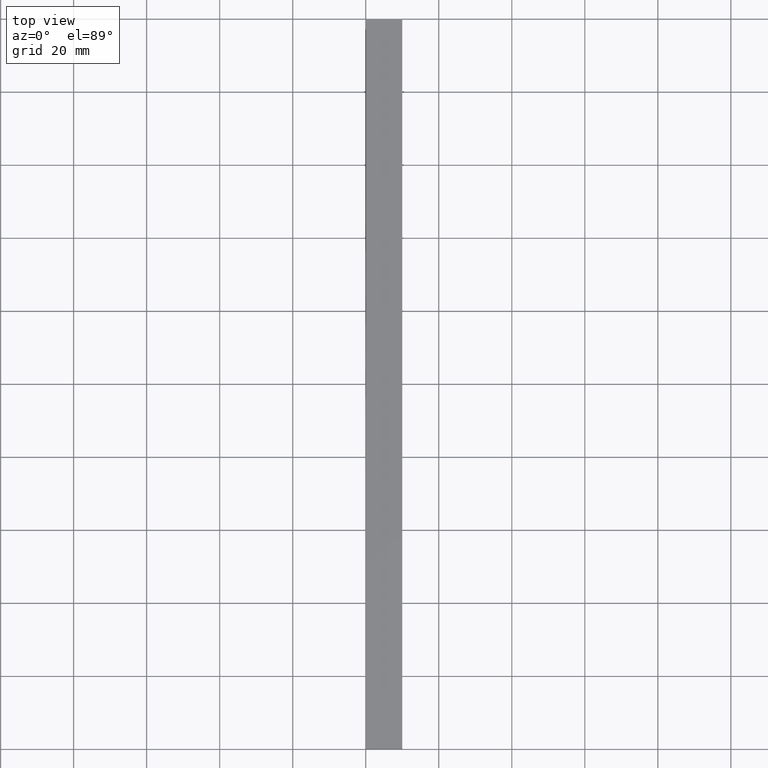
[diagram: clean part render]
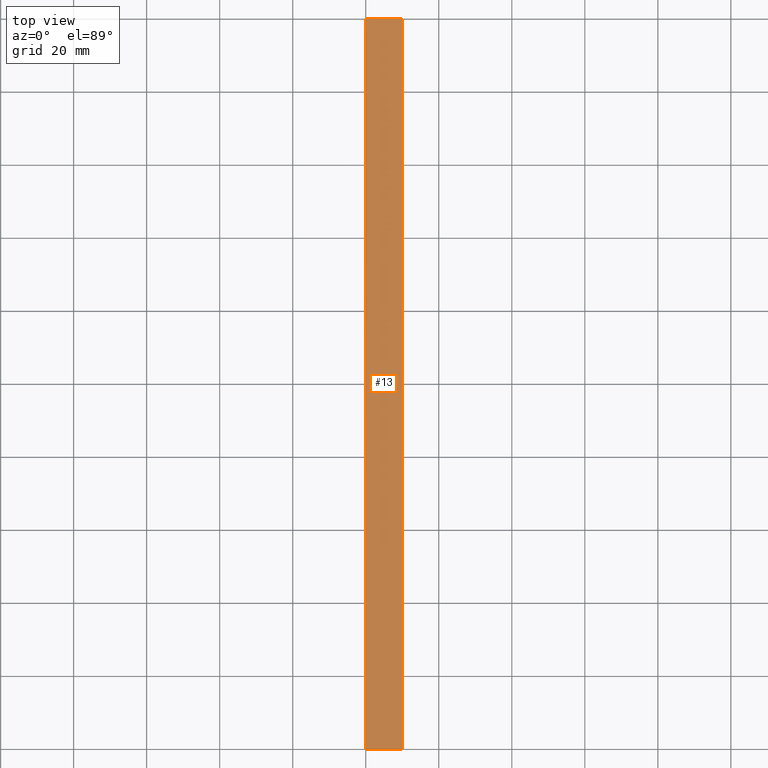
[diagram: same view with one face highlighted and labeled with its STEP entity id]
A machine part, top view. The second image highlights one B-rep face of the part: STEP entity #13.
In plain terms, the highlighted planar face has unit normal (0, 0, 1).
Its self-contained STEP definition (entity closure, byte-faithful):
#13 = ADVANCED_FACE ( 'NONE', ( #122 ), #112, .T. ) ;
#16 = CARTESIAN_POINT ( 'NONE',  ( 10.00000000000000000, 0.0000000000000000000, 5.000000000000000000 ) ) ;
#30 = ORIENTED_EDGE ( 'NONE', *, *, #132, .F. ) ;
#33 = LINE ( 'NONE', #70, #135 ) ;
#41 = ORIENTED_EDGE ( 'NONE', *, *, #145, .T. ) ;
#47 = DIRECTION ( 'NONE',  ( -1.000000000000000000, -0.0000000000000000000, -0.0000000000000000000 ) ) ;
#49 = DIRECTION ( 'NONE',  ( -1.000000000000000000, -0.0000000000000000000, -0.0000000000000000000 ) ) ;
#60 = AXIS2_PLACEMENT_3D ( 'NONE', #136, #109, #77 ) ;
#63 = VECTOR ( 'NONE', #161, 1000.000000000000000 ) ;
#70 = CARTESIAN_POINT ( 'NONE',  ( 10.00000000000000000, 1000.000000000000000, 5.000000000000000000 ) ) ;
#71 = VERTEX_POINT ( 'NONE', #198 ) ;
#77 = DIRECTION ( 'NONE',  ( 1.000000000000000000, 0.0000000000000000000, 0.0000000000000000000 ) ) ;
#79 = LINE ( 'NONE', #172, #148 ) ;
#102 = ORIENTED_EDGE ( 'NONE', *, *, #196, .F. ) ;
#105 = CARTESIAN_POINT ( 'NONE',  ( 0.0000000000000000000, 200.0000000000000000, 5.000000000000000000 ) ) ;
#107 = LINE ( 'NONE', #105, #126 ) ;
#109 = DIRECTION ( 'NONE',  ( 0.0000000000000000000, 0.0000000000000000000, 1.000000000000000000 ) ) ;
#112 = PLANE ( 'NONE',  #60 ) ;
#113 = EDGE_CURVE ( 'NONE', #134, #185, #131, .T. ) ;
#118 = EDGE_LOOP ( 'NONE', ( #102, #30, #41, #224 ) ) ;
#119 = VERTEX_POINT ( 'NONE', #16 ) ;
#122 = FACE_OUTER_BOUND ( 'NONE', #118, .T. ) ;
#126 = VECTOR ( 'NONE', #49, 1000.000000000000000 ) ;
#131 = LINE ( 'NONE', #142, #63 ) ;
#132 = EDGE_CURVE ( 'NONE', #71, #119, #33, .T. ) ;
#134 = VERTEX_POINT ( 'NONE', #232 ) ;
#135 = VECTOR ( 'NONE', #231, 1000.000000000000000 ) ;
#136 = CARTESIAN_POINT ( 'NONE',  ( 10.00000000000000000, 1000.000000000000000, 5.000000000000000000 ) ) ;
#142 = CARTESIAN_POINT ( 'NONE',  ( 0.0000000000000000000, 1000.000000000000000, 5.000000000000000000 ) ) ;
#145 = EDGE_CURVE ( 'NONE', #71, #134, #107, .T. ) ;
#148 = VECTOR ( 'NONE', #47, 1000.000000000000000 ) ;
#161 = DIRECTION ( 'NONE',  ( 0.0000000000000000000, -1.000000000000000000, 0.0000000000000000000 ) ) ;
#172 = CARTESIAN_POINT ( 'NONE',  ( 0.0000000000000000000, 0.0000000000000000000, 5.000000000000000000 ) ) ;
#185 = VERTEX_POINT ( 'NONE', #233 ) ;
#196 = EDGE_CURVE ( 'NONE', #119, #185, #79, .T. ) ;
#198 = CARTESIAN_POINT ( 'NONE',  ( 10.00000000000000000, 200.0000000000000000, 5.000000000000000000 ) ) ;
#224 = ORIENTED_EDGE ( 'NONE', *, *, #113, .T. ) ;
#231 = DIRECTION ( 'NONE',  ( 0.0000000000000000000, -1.000000000000000000, 0.0000000000000000000 ) ) ;
#232 = CARTESIAN_POINT ( 'NONE',  ( 0.0000000000000000000, 200.0000000000000000, 5.000000000000000000 ) ) ;
#233 = CARTESIAN_POINT ( 'NONE',  ( 0.0000000000000000000, 0.0000000000000000000, 5.000000000000000000 ) ) ;